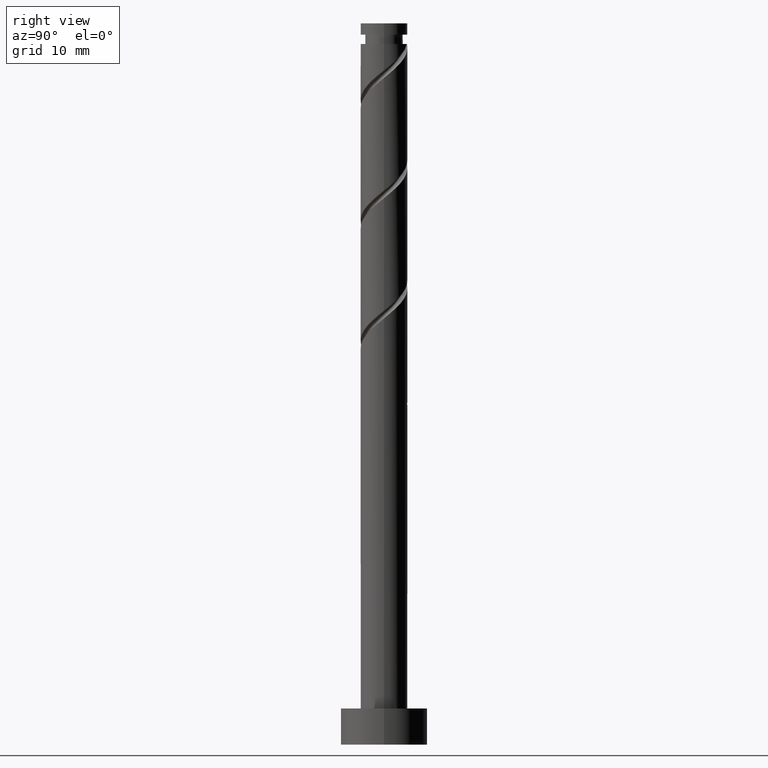
[diagram: clean part render]
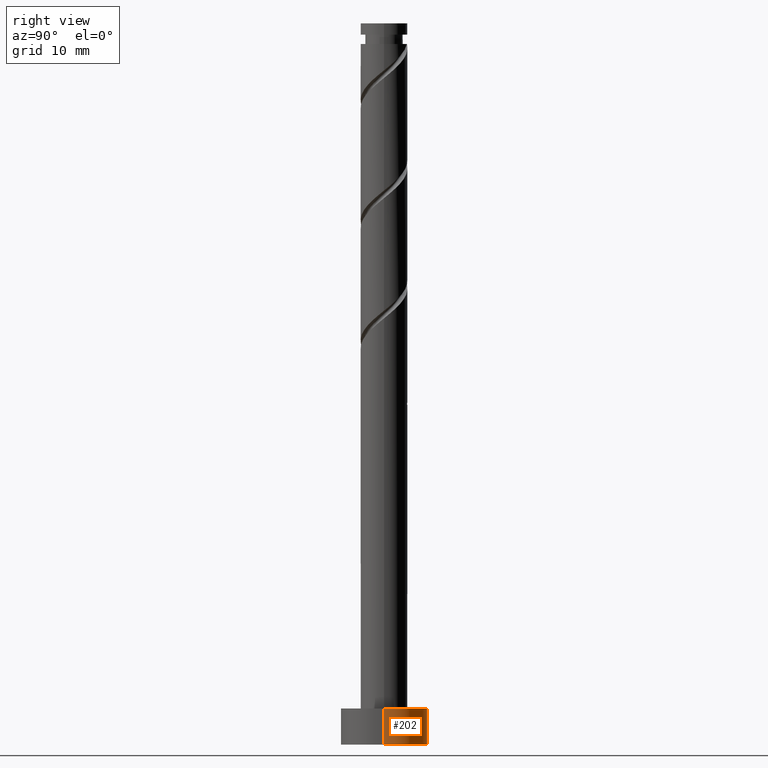
[diagram: same view with one face highlighted and labeled with its STEP entity id]
A machine part, right view. The second image highlights one B-rep face of the part: STEP entity #202.
In plain terms, the highlighted cylindrical surface (partial cylindrical patch) has radius 6 mm, axis along (-0, -0, -1).
Its self-contained STEP definition (entity closure, byte-faithful):
#14 = DIRECTION ( 'NONE',  ( -1.000000000000000000, 0.000000000000000000, 0.000000000000000000 ) ) ;
#55 = EDGE_CURVE ( 'NONE', #1361, #1013, #941, .T. ) ;
#70 = EDGE_CURVE ( 'NONE', #876, #1467, #1486, .T. ) ;
#132 = VECTOR ( 'NONE', #1267, 1000.000000000000000 ) ;
#136 = DIRECTION ( 'NONE',  ( -0.000000000000000000, -0.000000000000000000, -1.000000000000000000 ) ) ;
#192 = ORIENTED_EDGE ( 'NONE', *, *, #554, .F. ) ;
#202 = ADVANCED_FACE ( 'NONE', ( #347 ), #1070, .T. ) ;
#221 = DIRECTION ( 'NONE',  ( 0.000000000000000000, 0.000000000000000000, 1.000000000000000000 ) ) ;
#228 = DIRECTION ( 'NONE',  ( 1.000000000000000000, 0.000000000000000000, 0.000000000000000000 ) ) ;
#230 = CARTESIAN_POINT ( 'NONE',  ( -6.000000000000000888, 0.000000000000000000, 5.000000000000000000 ) ) ;
#347 = FACE_OUTER_BOUND ( 'NONE', #653, .T. ) ;
#426 = CARTESIAN_POINT ( 'NONE',  ( 0.000000000000000000, 0.000000000000000000, 5.000000000000000000 ) ) ;
#428 = ORIENTED_EDGE ( 'NONE', *, *, #643, .T. ) ;
#429 = ORIENTED_EDGE ( 'NONE', *, *, #70, .T. ) ;
#432 = CARTESIAN_POINT ( 'NONE',  ( -6.000000000000000888, 0.000000000000000000, 0.000000000000000000 ) ) ;
#538 = DIRECTION ( 'NONE',  ( 0.000000000000000000, 0.000000000000000000, 1.000000000000000000 ) ) ;
#554 = EDGE_CURVE ( 'NONE', #876, #1361, #1279, .T. ) ;
#556 = CIRCLE ( 'NONE', #868, 6.000000000000000888 ) ;
#608 = AXIS2_PLACEMENT_3D ( 'NONE', #426, #538, #1331 ) ;
#643 = EDGE_CURVE ( 'NONE', #1467, #1013, #556, .T. ) ;
#653 = EDGE_LOOP ( 'NONE', ( #192, #429, #428, #823 ) ) ;
#714 = DIRECTION ( 'NONE',  ( -0.000000000000000000, -0.000000000000000000, -1.000000000000000000 ) ) ;
#804 = CARTESIAN_POINT ( 'NONE',  ( 0.000000000000000000, 0.000000000000000000, 5.000000000000000000 ) ) ;
#823 = ORIENTED_EDGE ( 'NONE', *, *, #55, .F. ) ;
#868 = AXIS2_PLACEMENT_3D ( 'NONE', #1265, #221, #228 ) ;
#871 = AXIS2_PLACEMENT_3D ( 'NONE', #804, #714, #14 ) ;
#876 = VERTEX_POINT ( 'NONE', #1105 ) ;
#941 = LINE ( 'NONE', #230, #132 ) ;
#1013 = VERTEX_POINT ( 'NONE', #432 ) ;
#1070 = CYLINDRICAL_SURFACE ( 'NONE', #871, 6.000000000000000888 ) ;
#1105 = CARTESIAN_POINT ( 'NONE',  ( 6.000000000000000888, 7.347880794884120722E-16, 5.000000000000000000 ) ) ;
#1156 = CARTESIAN_POINT ( 'NONE',  ( 6.000000000000000888, 7.347880794884120722E-16, 5.000000000000000000 ) ) ;
#1164 = VECTOR ( 'NONE', #136, 1000.000000000000000 ) ;
#1265 = CARTESIAN_POINT ( 'NONE',  ( 0.000000000000000000, 0.000000000000000000, 0.000000000000000000 ) ) ;
#1267 = DIRECTION ( 'NONE',  ( -0.000000000000000000, -0.000000000000000000, -1.000000000000000000 ) ) ;
#1279 = CIRCLE ( 'NONE', #608, 6.000000000000000888 ) ;
#1300 = CARTESIAN_POINT ( 'NONE',  ( 6.000000000000000888, 7.347880794884120722E-16, 0.000000000000000000 ) ) ;
#1331 = DIRECTION ( 'NONE',  ( 1.000000000000000000, 0.000000000000000000, 0.000000000000000000 ) ) ;
#1361 = VERTEX_POINT ( 'NONE', #1418 ) ;
#1418 = CARTESIAN_POINT ( 'NONE',  ( -6.000000000000000888, 0.000000000000000000, 5.000000000000000000 ) ) ;
#1467 = VERTEX_POINT ( 'NONE', #1300 ) ;
#1486 = LINE ( 'NONE', #1156, #1164 ) ;